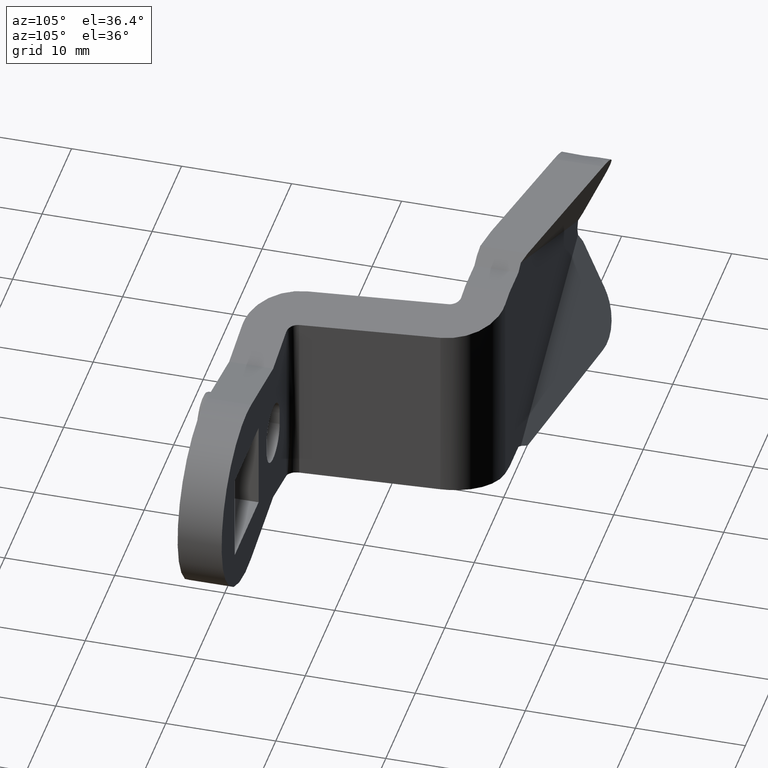
[diagram: clean part render]
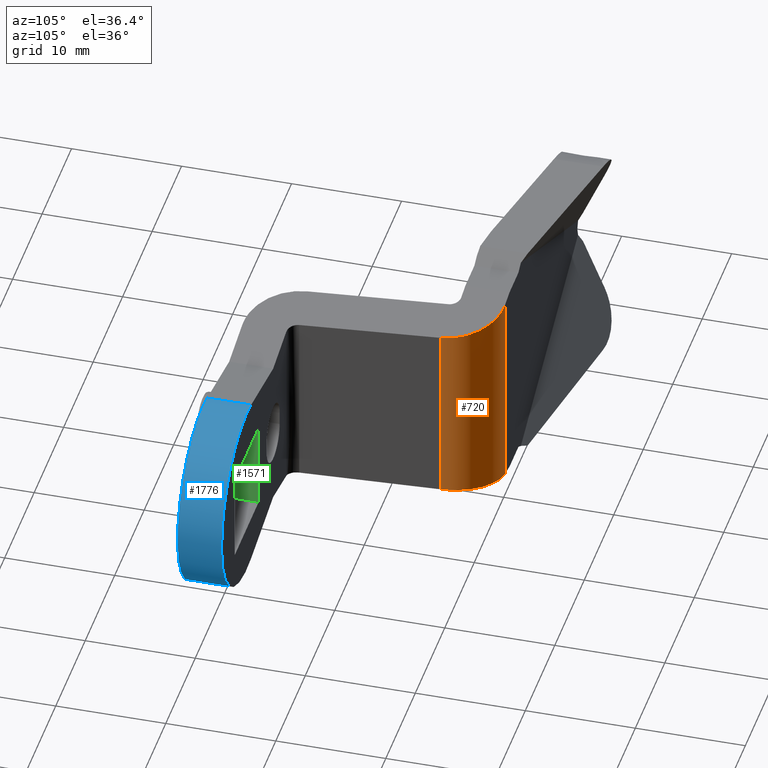
[diagram: same view with three faces highlighted in distinct colors, each labeled with its STEP entity id]
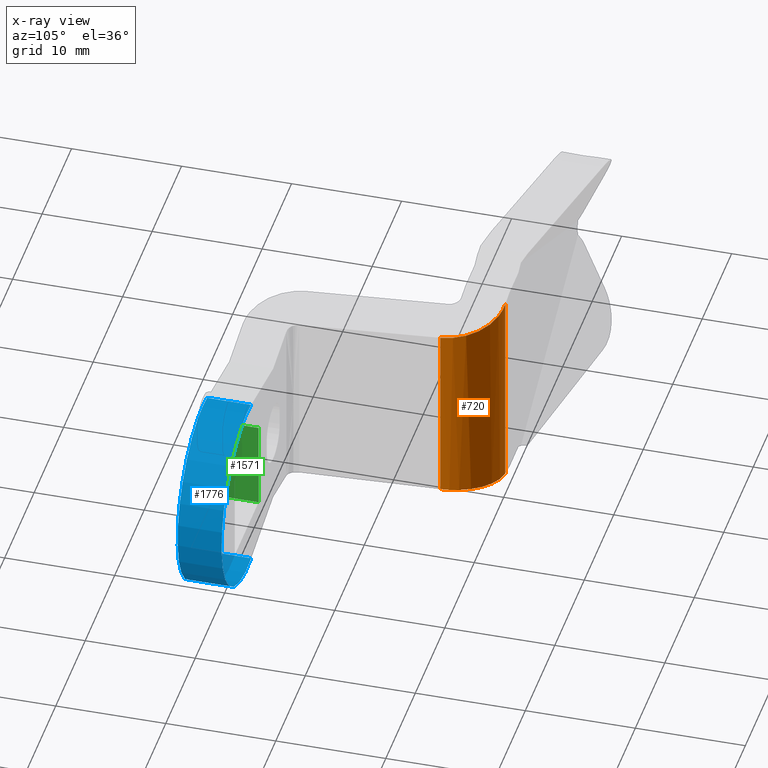
[diagram: x-ray of the same camera — body ghosted, the three highlighted faces saturated]
A machine part, auxiliary view with three faces highlighted in distinct colors.
The next image is the same camera in x-ray (body ghosted, the three faces saturated) — at least one of them is partly hidden behind the body in this view.
Their STEP definitions:

[orange] entity #720 — the highlighted face is a freeform B-spline surface patch.
#660=CARTESIAN_POINT('',(-20.658640095434819,-0.001713375122216,-9.677720093863796));
#661=CARTESIAN_POINT('',(-20.658640095434819,-0.001713375122216,9.689241189213632));
#662=CARTESIAN_POINT('',(-15.660353470557043,0.129171366417157,-9.677720093863798));
#663=CARTESIAN_POINT('',(-15.660353470557043,0.129171366417157,9.689241189213632));
#664=CARTESIAN_POINT('',(-15.529468729017671,-4.869115258460628,-9.677720093863796));
#665=CARTESIAN_POINT('',(-15.529468729017671,-4.869115258460628,9.689241189213632));
#673=(BOUNDED_SURFACE()B_SPLINE_SURFACE(1,2,((#660,#662,#664),(#661,#663,#665)),.UNSPECIFIED.,.F.,.F.,.U.)B_SPLINE_SURFACE_WITH_KNOTS((2,2),(3,3),(0.0,19.366961283077430),(0.0,8.284271247461899),.UNSPECIFIED.)GEOMETRIC_REPRESENTATION_ITEM()RATIONAL_B_SPLINE_SURFACE(((1.0,0.707106781186548,1.0),(1.0,0.707106781186548,1.0)))REPRESENTATION_ITEM('')SURFACE());
#674=CARTESIAN_POINT('',(-15.546781863436699,-4.564221286261880,8.258996762474489));
#675=VERTEX_POINT('',#674);
#676=CARTESIAN_POINT('',(-20.527755353895451,0.0,9.216876279870281));
#677=VERTEX_POINT('',#676);
#678=CARTESIAN_POINT('',(-15.546781863436710,-4.564221286261881,8.258996762474487));
#679=CARTESIAN_POINT('',(-15.946099483808181,0.0,8.335788612545914));
#680=CARTESIAN_POINT('',(-20.527755353895451,0.0,9.216876279870281));
#688=(BOUNDED_CURVE()B_SPLINE_CURVE(2,(#678,#679,#680),.UNSPECIFIED.,.F.,.U.)CURVE()GEOMETRIC_REPRESENTATION_ITEM()QUASI_UNIFORM_CURVE()RATIONAL_B_SPLINE_CURVE((1.0,0.737277336810113,1.0))REPRESENTATION_ITEM(''));
#689=EDGE_CURVE('',#675,#677,#688,.T.);
#690=ORIENTED_EDGE('',*,*,#689,.F.);
#691=CARTESIAN_POINT('',(-15.546781863436751,-4.564221286261440,-8.258996762474430));
#692=VERTEX_POINT('',#691);
#693=CARTESIAN_POINT('',(-15.546781863436751,-4.564221286261440,-8.258996762474430));
#694=CARTESIAN_POINT('',(-15.546781863436699,-4.564221286261880,8.258996762474489));
#695=QUASI_UNIFORM_CURVE('',1,(#693,#694),.UNSPECIFIED.,.F.,.U.);
#696=EDGE_CURVE('',#692,#675,#695,.T.);
#697=ORIENTED_EDGE('',*,*,#696,.F.);
#698=CARTESIAN_POINT('',(-20.527755353895451,0.0,-9.216876279870281));
#699=VERTEX_POINT('',#698);
#700=CARTESIAN_POINT('',(-20.527755353895451,0.0,-9.216876279870281));
#701=CARTESIAN_POINT('',(-15.946099483808579,0.0,-8.335788612545937));
#702=CARTESIAN_POINT('',(-15.546781863436740,-4.564221286261438,-8.258996762474432));
#710=(BOUNDED_CURVE()B_SPLINE_CURVE(2,(#700,#701,#702),.UNSPECIFIED.,.F.,.U.)CURVE()GEOMETRIC_REPRESENTATION_ITEM()QUASI_UNIFORM_CURVE()RATIONAL_B_SPLINE_CURVE((1.0,0.737277336810143,1.0))REPRESENTATION_ITEM(''));
#711=EDGE_CURVE('',#699,#692,#710,.T.);
#712=ORIENTED_EDGE('',*,*,#711,.F.);
#713=CARTESIAN_POINT('',(-20.527755353895451,0.0,9.216876279870281));
#714=CARTESIAN_POINT('',(-20.527755353895451,0.0,-9.216876279870281));
#715=QUASI_UNIFORM_CURVE('',1,(#713,#714),.UNSPECIFIED.,.F.,.U.);
#716=EDGE_CURVE('',#677,#699,#715,.T.);
#717=ORIENTED_EDGE('',*,*,#716,.F.);
#718=EDGE_LOOP('',(#690,#697,#712,#717));
#719=FACE_OUTER_BOUND('',#718,.T.);
#720=ADVANCED_FACE('',(#719),#673,.T.);

[blue] entity #1776 — the highlighted face is a freeform B-spline surface patch.
#1662=CARTESIAN_POINT('',(-1.523762737230910,-18.0,-8.362305542373751));
#1663=VERTEX_POINT('',#1662);
#1669=CARTESIAN_POINT('',(-1.523762737230910,-22.000000199999949,-8.362305542373751));
#1670=VERTEX_POINT('',#1669);
#1671=CARTESIAN_POINT('',(-1.523762737230910,-22.000000199999949,-8.362305542373751));
#1672=CARTESIAN_POINT('',(-1.523762737230910,-18.0,-8.362305542373751));
#1673=QUASI_UNIFORM_CURVE('',1,(#1671,#1672),.UNSPECIFIED.,.F.,.U.);
#1674=EDGE_CURVE('',#1670,#1663,#1673,.T.);
#1689=CARTESIAN_POINT('',(-1.523762737230910,-22.000000199999949,8.362305542373589));
#1690=VERTEX_POINT('',#1689);
#1691=CARTESIAN_POINT('',(-1.523762737230875,-18.0,8.362305542373401));
#1692=VERTEX_POINT('',#1691);
#1693=CARTESIAN_POINT('',(-1.523762737230910,-22.000000199999949,8.362305542373589));
#1694=CARTESIAN_POINT('',(-1.523762737230875,-18.0,8.362305542373401));
#1695=QUASI_UNIFORM_CURVE('',1,(#1693,#1694),.UNSPECIFIED.,.F.,.U.);
#1696=EDGE_CURVE('',#1690,#1692,#1695,.T.);
#1720=CARTESIAN_POINT('',(-1.742140221714977,-22.100000204999951,-8.319552530711286));
#1721=CARTESIAN_POINT('',(-1.742140221714977,-17.897499994875002,-8.319552530711286));
#1722=CARTESIAN_POINT('',(8.623807395392296,-22.100000204999954,-10.490214259607074));
#1723=CARTESIAN_POINT('',(8.623807395392296,-17.897499994875002,-10.490214259607074));
#1724=CARTESIAN_POINT('',(8.499414073772009,-22.100000204999951,0.099836195581566));
#1725=CARTESIAN_POINT('',(8.499414073772009,-17.897499994875002,0.099836195581566));
#1726=CARTESIAN_POINT('',(8.375020752151720,-22.100000204999954,10.689886650770204));
#1727=CARTESIAN_POINT('',(8.375020752151720,-17.897499994875002,10.689886650770204));
#1728=CARTESIAN_POINT('',(-1.937079579939605,-22.100000204999951,8.276335515453871));
#1729=CARTESIAN_POINT('',(-1.937079579939605,-17.897499994875002,8.276335515453871));
#1737=(BOUNDED_SURFACE()B_SPLINE_SURFACE(1,2,((#1720,#1722,#1724,#1726,#1728),(#1721,#1723,#1725,#1727,#1729)),.UNSPECIFIED.,.F.,.F.,.U.)B_SPLINE_SURFACE_WITH_KNOTS((2,2),(3,2,3),(0.0,4.202500210124953),(0.0,16.308315943668319,32.616631887336638),.UNSPECIFIED.)GEOMETRIC_REPRESENTATION_ITEM()RATIONAL_B_SPLINE_SURFACE(((1.0,0.625923472184059,1.0,0.625923472184059,1.0),(1.0,0.625923472184059,1.0,0.625923472184059,1.0)))REPRESENTATION_ITEM('')SURFACE());
#1738=CARTESIAN_POINT('',(-1.523762737230910,-18.0,-8.362305542373751));
#1739=CARTESIAN_POINT('',(3.999032446587343,-17.999999999999996,-9.368658331543484));
#1740=CARTESIAN_POINT('',(7.092747502208309,-18.0,-4.684329165771725));
#1741=CARTESIAN_POINT('',(10.186462557829275,-17.999999999999996,3.242545E-014));
#1742=CARTESIAN_POINT('',(7.092747502208290,-18.0,4.684329165771780));
#1743=CARTESIAN_POINT('',(3.999032446587308,-17.999999999999996,9.368658331543523));
#1744=CARTESIAN_POINT('',(-1.523762737230865,-18.0,8.362305542373402));
#1752=(BOUNDED_CURVE()B_SPLINE_CURVE(2,(#1738,#1739,#1740,#1741,#1742,#1743,#1744),.UNSPECIFIED.,.F.,.U.)B_SPLINE_CURVE_WITH_KNOTS((3,2,2,3),(0.0,0.333333333333333,0.666666666666667,1.0),.UNSPECIFIED.)CURVE()GEOMETRIC_REPRESENTATION_ITEM()RATIONAL_B_SPLINE_CURVE((1.0,0.834440842978927,1.0,0.834440842978927,1.0,0.834440842978927,1.0))REPRESENTATION_ITEM(''));
#1753=EDGE_CURVE('',#1663,#1692,#1752,.T.);
#1754=ORIENTED_EDGE('',*,*,#1753,.T.);
#1755=ORIENTED_EDGE('',*,*,#1696,.F.);
#1756=CARTESIAN_POINT('',(-1.523762737230910,-22.000000199999949,-8.362305542373751));
#1757=CARTESIAN_POINT('',(3.999032446587344,-22.000000199999945,-9.368658331543481));
#1758=CARTESIAN_POINT('',(7.092747502208310,-22.000000199999949,-4.684329165771723));
#1759=CARTESIAN_POINT('',(10.186462557829273,-22.000000199999945,3.589490E-014));
#1760=CARTESIAN_POINT('',(7.092747502208290,-22.000000199999949,4.684329165771781));
#1761=CARTESIAN_POINT('',(3.999032446587307,-22.000000199999945,9.368658331543525));
#1762=CARTESIAN_POINT('',(-1.523762737230910,-22.000000199999949,8.362305542373589));
#1770=(BOUNDED_CURVE()B_SPLINE_CURVE(2,(#1756,#1757,#1758,#1759,#1760,#1761,#1762),.UNSPECIFIED.,.F.,.U.)B_SPLINE_CURVE_WITH_KNOTS((3,2,2,3),(0.0,0.333333333333333,0.666666666666667,1.0),.UNSPECIFIED.)CURVE()GEOMETRIC_REPRESENTATION_ITEM()RATIONAL_B_SPLINE_CURVE((1.0,0.834440842978928,1.0,0.834440842978928,1.0,0.834440842978928,1.0))REPRESENTATION_ITEM(''));
#1771=EDGE_CURVE('',#1670,#1690,#1770,.T.);
#1772=ORIENTED_EDGE('',*,*,#1771,.F.);
#1773=ORIENTED_EDGE('',*,*,#1674,.T.);
#1774=EDGE_LOOP('',(#1754,#1755,#1772,#1773));
#1775=FACE_OUTER_BOUND('',#1774,.T.);
#1776=ADVANCED_FACE('',(#1775),#1737,.T.);

[green] entity #1571 — the highlighted face is a freeform B-spline surface patch.
#1536=CARTESIAN_POINT('',(-4.050000192364635,-22.199800014491480,4.454595195882550));
#1537=CARTESIAN_POINT('',(-4.050000192364635,-22.199800014491480,-4.454595413141479));
#1538=CARTESIAN_POINT('',(-4.050000192364635,-17.800199899406170,4.454595195882550));
#1539=CARTESIAN_POINT('',(-4.050000192364635,-17.800199899406170,-4.454595413141479));
#1540=B_SPLINE_SURFACE_WITH_KNOTS('',1,1,((#1536,#1538),(#1537,#1539)),.UNSPECIFIED.,.F.,.F.,.U.,(2,2),(2,2),(0.0,8.909190609024028),(0.0,4.399600115085310),.UNSPECIFIED.);
#1541=CARTESIAN_POINT('',(-4.050000192364635,-18.0,4.050000192364690));
#1542=VERTEX_POINT('',#1541);
#1543=CARTESIAN_POINT('',(-4.050000192364635,-18.0,-4.050000192364680));
#1544=VERTEX_POINT('',#1543);
#1545=CARTESIAN_POINT('',(-4.050000192364635,-18.0,4.050000192364690));
#1546=CARTESIAN_POINT('',(-4.050000192364635,-18.0,-4.050000192364680));
#1547=QUASI_UNIFORM_CURVE('',1,(#1545,#1546),.UNSPECIFIED.,.F.,.U.);
#1548=EDGE_CURVE('',#1542,#1544,#1547,.T.);
#1549=ORIENTED_EDGE('',*,*,#1548,.F.);
#1550=CARTESIAN_POINT('',(-4.050000192364635,-22.000000199999949,4.050000192364690));
#1551=VERTEX_POINT('',#1550);
#1552=CARTESIAN_POINT('',(-4.050000192364635,-22.000000199999949,4.050000192364690));
#1553=CARTESIAN_POINT('',(-4.050000192364635,-18.0,4.050000192364690));
#1554=QUASI_UNIFORM_CURVE('',1,(#1552,#1553),.UNSPECIFIED.,.F.,.U.);
#1555=EDGE_CURVE('',#1551,#1542,#1554,.T.);
#1556=ORIENTED_EDGE('',*,*,#1555,.F.);
#1557=CARTESIAN_POINT('',(-4.050000192364635,-22.000000199999949,-4.050000192364680));
#1558=VERTEX_POINT('',#1557);
#1559=CARTESIAN_POINT('',(-4.050000192364635,-22.000000199999949,-4.050000192364680));
#1560=CARTESIAN_POINT('',(-4.050000192364635,-22.000000199999949,4.050000192364690));
#1561=QUASI_UNIFORM_CURVE('',1,(#1559,#1560),.UNSPECIFIED.,.F.,.U.);
#1562=EDGE_CURVE('',#1558,#1551,#1561,.T.);
#1563=ORIENTED_EDGE('',*,*,#1562,.F.);
#1564=CARTESIAN_POINT('',(-4.050000192364635,-22.000000199999949,-4.050000192364680));
#1565=CARTESIAN_POINT('',(-4.050000192364635,-18.0,-4.050000192364680));
#1566=QUASI_UNIFORM_CURVE('',1,(#1564,#1565),.UNSPECIFIED.,.F.,.U.);
#1567=EDGE_CURVE('',#1558,#1544,#1566,.T.);
#1568=ORIENTED_EDGE('',*,*,#1567,.T.);
#1569=EDGE_LOOP('',(#1549,#1556,#1563,#1568));
#1570=FACE_OUTER_BOUND('',#1569,.T.);
#1571=ADVANCED_FACE('',(#1570),#1540,.T.);